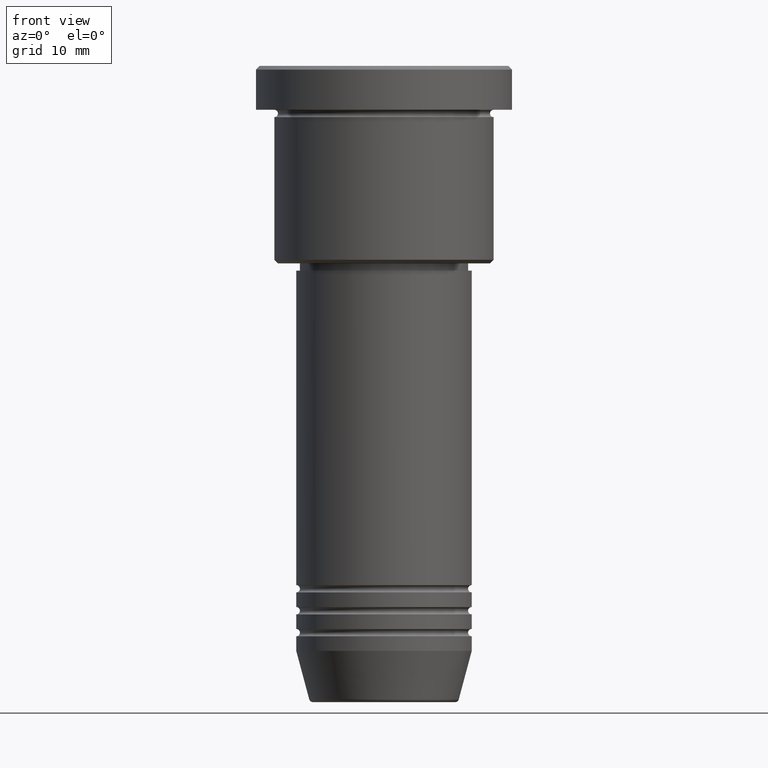
[diagram: clean part render]
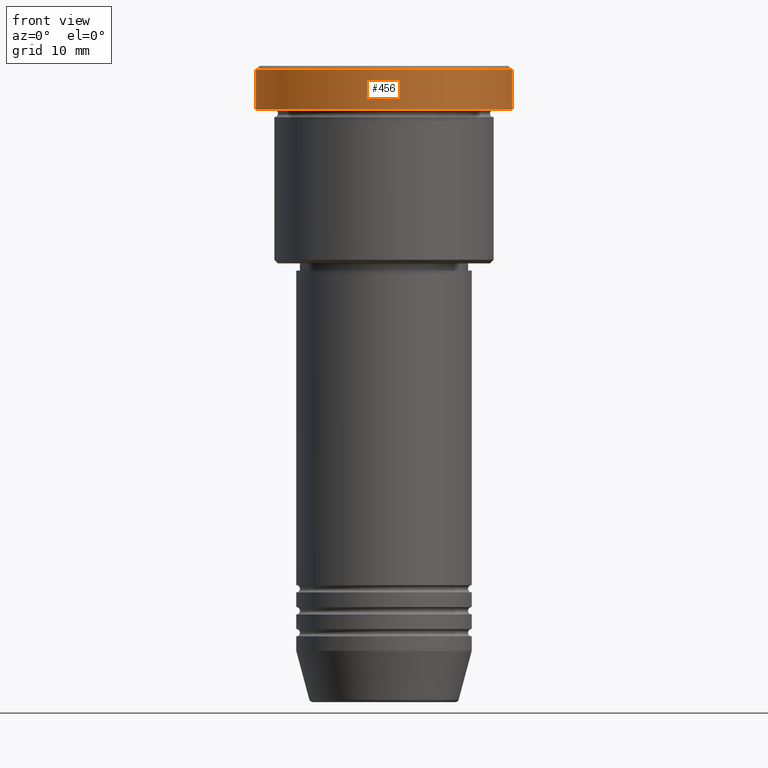
[diagram: same view with one face highlighted and labeled with its STEP entity id]
A machine part, front view. The second image highlights one B-rep face of the part: STEP entity #456.
In plain terms, the highlighted cylindrical surface (partial cylindrical patch) has radius 17.5 mm, axis along (-0, -0, 1).
Its self-contained STEP definition (entity closure, byte-faithful):
#20 = AXIS2_PLACEMENT_3D ( 'NONE', #252, #795, #1167 ) ;
#33 = CYLINDRICAL_SURFACE ( 'NONE', #100, 17.50000000000000000 ) ;
#36 = VERTEX_POINT ( 'NONE', #678 ) ;
#100 = AXIS2_PLACEMENT_3D ( 'NONE', #656, #1119, #663 ) ;
#138 = LINE ( 'NONE', #1061, #539 ) ;
#148 = ORIENTED_EDGE ( 'NONE', *, *, #813, .F. ) ;
#203 = AXIS2_PLACEMENT_3D ( 'NONE', #1102, #1175, #647 ) ;
#228 = FACE_OUTER_BOUND ( 'NONE', #853, .T. ) ;
#252 = CARTESIAN_POINT ( 'NONE',  ( 0.000000000000000000, 0.000000000000000000, -5.999999999999995559 ) ) ;
#322 = DIRECTION ( 'NONE',  ( -0.000000000000000000, -0.000000000000000000, 1.000000000000000000 ) ) ;
#333 = CARTESIAN_POINT ( 'NONE',  ( -17.50000000000000000, 2.143131898507868248E-15, -0.5000000000000143219 ) ) ;
#373 = CIRCLE ( 'NONE', #203, 17.50000000000000000 ) ;
#446 = DIRECTION ( 'NONE',  ( -0.000000000000000000, -0.000000000000000000, 1.000000000000000000 ) ) ;
#456 = ADVANCED_FACE ( 'NONE', ( #228 ), #33, .T. ) ;
#460 = CARTESIAN_POINT ( 'NONE',  ( -17.50000000000000000, 2.143131898507868248E-15, 0.000000000000000000 ) ) ;
#529 = ORIENTED_EDGE ( 'NONE', *, *, #1112, .T. ) ;
#539 = VECTOR ( 'NONE', #322, 1000.000000000000000 ) ;
#557 = CIRCLE ( 'NONE', #20, 17.50000000000000000 ) ;
#573 = ORIENTED_EDGE ( 'NONE', *, *, #860, .T. ) ;
#603 = CARTESIAN_POINT ( 'NONE',  ( 17.50000000000000000, 0.000000000000000000, -0.5000000000000143219 ) ) ;
#630 = CARTESIAN_POINT ( 'NONE',  ( -17.50000000000000000, 2.143131898507868248E-15, -5.999999999999995559 ) ) ;
#642 = ORIENTED_EDGE ( 'NONE', *, *, #698, .T. ) ;
#647 = DIRECTION ( 'NONE',  ( 1.000000000000000000, 0.000000000000000000, 0.000000000000000000 ) ) ;
#656 = CARTESIAN_POINT ( 'NONE',  ( 0.000000000000000000, 0.000000000000000000, 0.000000000000000000 ) ) ;
#663 = DIRECTION ( 'NONE',  ( 1.000000000000000000, 0.000000000000000000, 0.000000000000000000 ) ) ;
#674 = VERTEX_POINT ( 'NONE', #333 ) ;
#678 = CARTESIAN_POINT ( 'NONE',  ( 17.50000000000000000, 0.000000000000000000, -5.999999999999995559 ) ) ;
#698 = EDGE_CURVE ( 'NONE', #748, #36, #557, .T. ) ;
#748 = VERTEX_POINT ( 'NONE', #630 ) ;
#795 = DIRECTION ( 'NONE',  ( -0.000000000000000000, -0.000000000000000000, 1.000000000000000000 ) ) ;
#808 = LINE ( 'NONE', #460, #1149 ) ;
#813 = EDGE_CURVE ( 'NONE', #748, #674, #808, .T. ) ;
#853 = EDGE_LOOP ( 'NONE', ( #148, #642, #529, #573 ) ) ;
#860 = EDGE_CURVE ( 'NONE', #1160, #674, #373, .T. ) ;
#1061 = CARTESIAN_POINT ( 'NONE',  ( 17.50000000000000000, 0.000000000000000000, 0.000000000000000000 ) ) ;
#1102 = CARTESIAN_POINT ( 'NONE',  ( 0.000000000000000000, 0.000000000000000000, -0.5000000000000143219 ) ) ;
#1112 = EDGE_CURVE ( 'NONE', #36, #1160, #138, .T. ) ;
#1119 = DIRECTION ( 'NONE',  ( -0.000000000000000000, -0.000000000000000000, 1.000000000000000000 ) ) ;
#1149 = VECTOR ( 'NONE', #446, 1000.000000000000000 ) ;
#1160 = VERTEX_POINT ( 'NONE', #603 ) ;
#1167 = DIRECTION ( 'NONE',  ( 1.000000000000000000, 0.000000000000000000, 0.000000000000000000 ) ) ;
#1175 = DIRECTION ( 'NONE',  ( 0.000000000000000000, 0.000000000000000000, -1.000000000000000000 ) ) ;